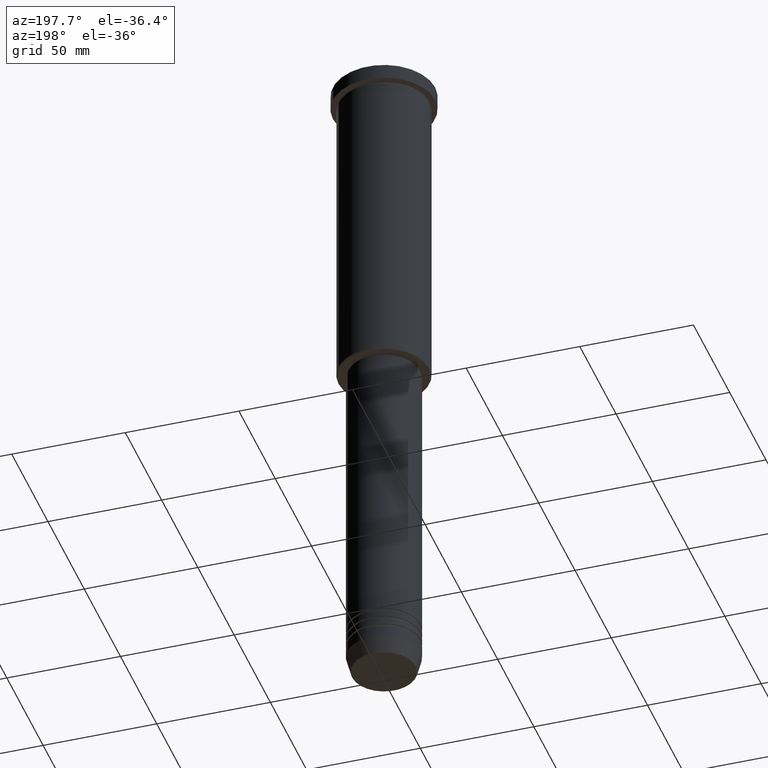
[diagram: clean part render]
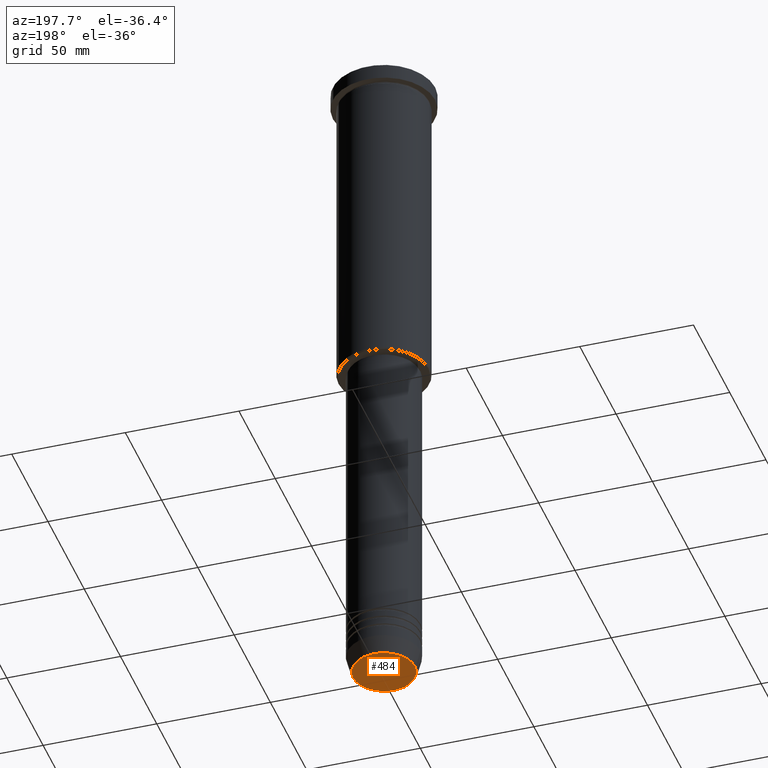
[diagram: same view with one face highlighted and labeled with its STEP entity id]
A machine part, auxiliary view. The second image highlights one B-rep face of the part: STEP entity #484.
In plain terms, the highlighted planar face has unit normal (0, -0, 1).
Its self-contained STEP definition (entity closure, byte-faithful):
#37 = AXIS2_PLACEMENT_3D ( 'NONE', #410, #307, #581 ) ;
#52 = VERTEX_POINT ( 'NONE', #582 ) ;
#137 = CARTESIAN_POINT ( 'NONE',  ( 0.000000000000000000, 0.000000000000000000, -300.0000000000000000 ) ) ;
#205 = DIRECTION ( 'NONE',  ( 0.000000000000000000, -0.000000000000000000, 1.000000000000000000 ) ) ;
#222 = DIRECTION ( 'NONE',  ( 1.000000000000000000, 0.000000000000000000, 0.000000000000000000 ) ) ;
#251 = CARTESIAN_POINT ( 'NONE',  ( -13.60671756277709399, 1.695915260300171258E-15, -300.0000000000000000 ) ) ;
#268 = EDGE_LOOP ( 'NONE', ( #406, #754 ) ) ;
#307 = DIRECTION ( 'NONE',  ( 0.000000000000000000, 0.000000000000000000, -1.000000000000000000 ) ) ;
#406 = ORIENTED_EDGE ( 'NONE', *, *, #965, .T. ) ;
#410 = CARTESIAN_POINT ( 'NONE',  ( 0.000000000000000000, 0.000000000000000000, -300.0000000000000000 ) ) ;
#484 = ADVANCED_FACE ( 'NONE', ( #1048 ), #703, .F. ) ;
#504 = AXIS2_PLACEMENT_3D ( 'NONE', #137, #205, #222 ) ;
#527 = AXIS2_PLACEMENT_3D ( 'NONE', #886, #675, #955 ) ;
#559 = CIRCLE ( 'NONE', #37, 13.60671756277709399 ) ;
#581 = DIRECTION ( 'NONE',  ( 1.000000000000000000, 0.000000000000000000, 0.000000000000000000 ) ) ;
#582 = CARTESIAN_POINT ( 'NONE',  ( 13.60671756277709399, 0.000000000000000000, -300.0000000000000000 ) ) ;
#675 = DIRECTION ( 'NONE',  ( 0.000000000000000000, 0.000000000000000000, -1.000000000000000000 ) ) ;
#703 = PLANE ( 'NONE',  #504 ) ;
#754 = ORIENTED_EDGE ( 'NONE', *, *, #943, .T. ) ;
#886 = CARTESIAN_POINT ( 'NONE',  ( 0.000000000000000000, 0.000000000000000000, -300.0000000000000000 ) ) ;
#932 = CIRCLE ( 'NONE', #527, 13.60671756277709399 ) ;
#940 = VERTEX_POINT ( 'NONE', #251 ) ;
#943 = EDGE_CURVE ( 'NONE', #940, #52, #932, .T. ) ;
#955 = DIRECTION ( 'NONE',  ( 1.000000000000000000, 0.000000000000000000, 0.000000000000000000 ) ) ;
#965 = EDGE_CURVE ( 'NONE', #52, #940, #559, .T. ) ;
#1048 = FACE_OUTER_BOUND ( 'NONE', #268, .T. ) ;